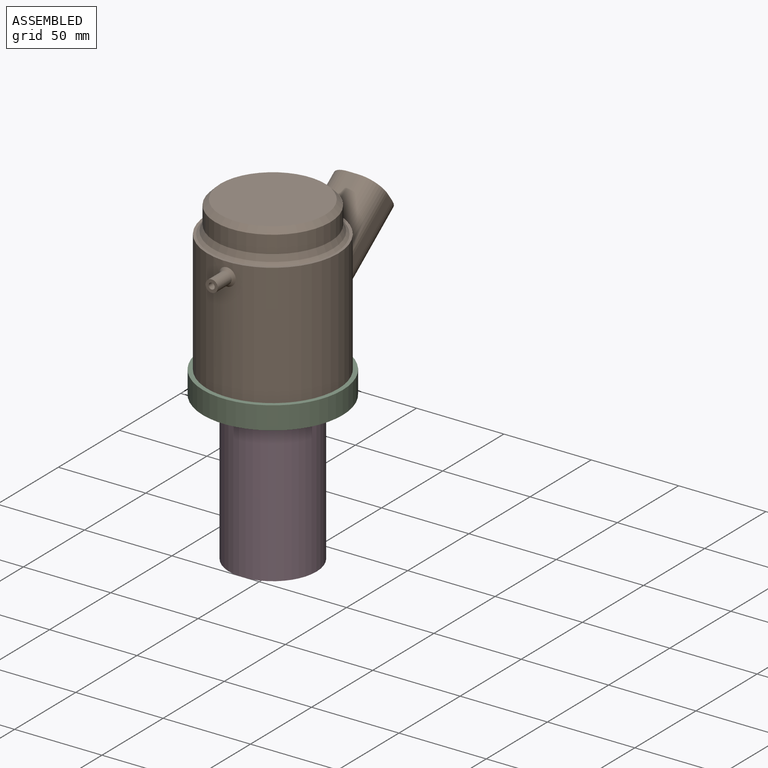
[diagram: assembled view]
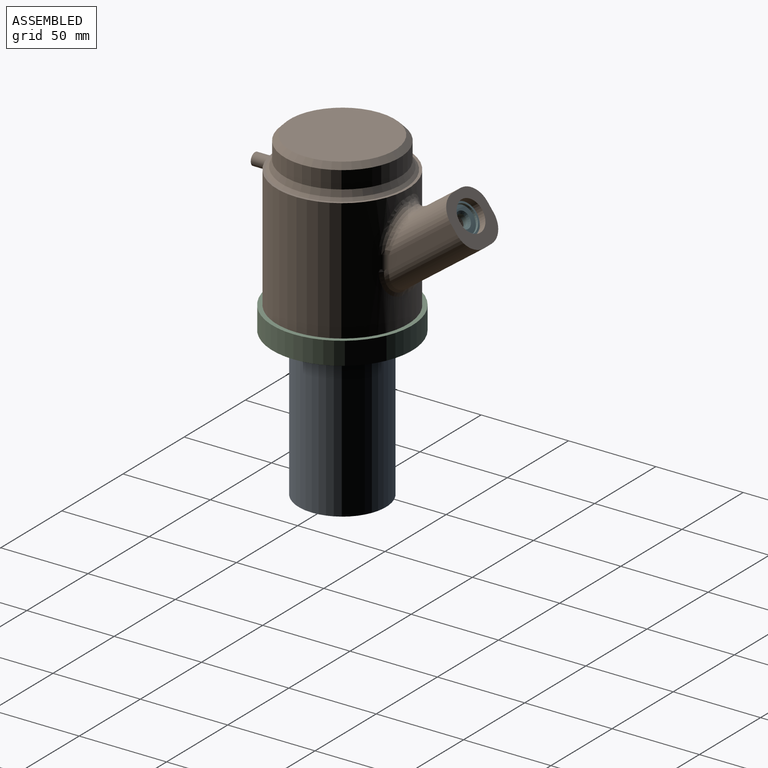
[diagram: assembled view, second angle]
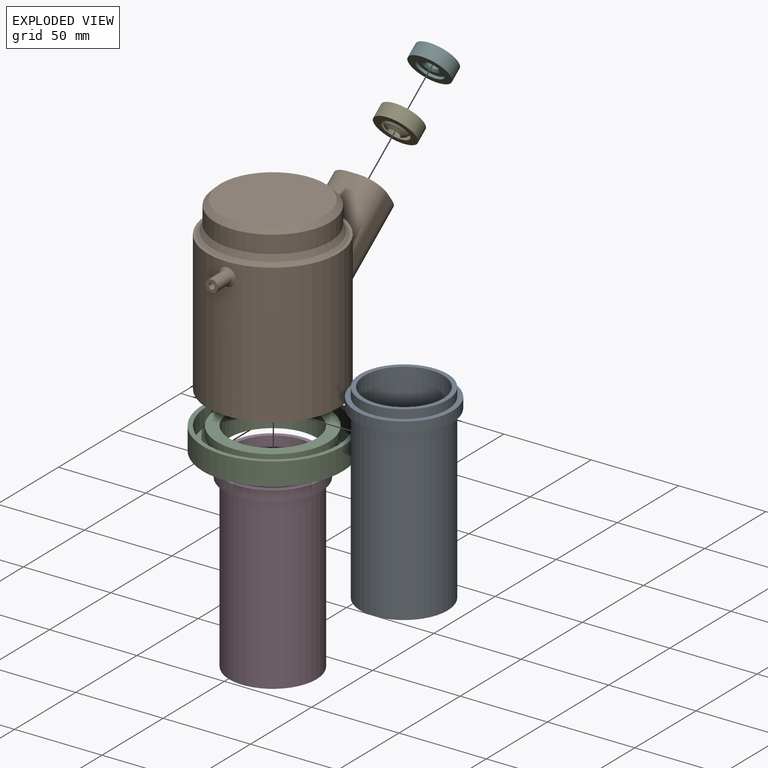
[diagram: exploded view]
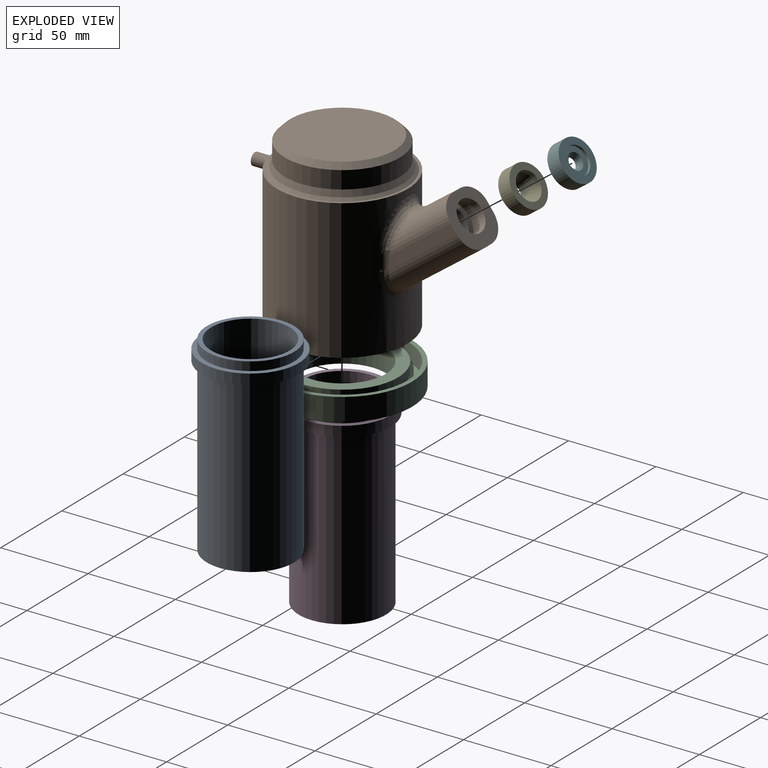
[diagram: exploded view, second angle]
ASSEMBLY  parts=6 mates=4
PART A: 9 faces, bbox 55.6x55.6x109 mm
  f0: cylinder r=25mm len=98mm, axis (0,0,1), area 15393.8mm2, adj f1,f8
  f1: plane 55.6x55.6mm, normal (0,0,-1), area 464.5mm2, adj f0,f2
  f2: cylinder r=27.8mm len=55.6mm, axis (0,0,1), area 1048mm2, adj f1,f3
  f3: plane 55.6x55.6mm, normal (0,0,1), area 464.5mm2, adj f2,f4
  f4: cylinder r=25mm len=50mm, axis (0,0,1), area 785.4mm2, adj f3,f5
  f5: plane 50x50mm, normal (0,0,1), area 373.1mm2, adj f4,f6
  f6: cylinder r=22.5mm len=106.5mm, axis (0,0,1), area 15056.1mm2, adj f5,f7
  f7: plane 45x45mm, normal (0,0,1), area 1590.4mm2, adj f6
  f8: plane 50x50mm, normal (0,0,-1), area 1963.5mm2, adj f0
PART B: 46 faces, bbox 75x133.3x98 mm
  f0: cylinder r=9mm len=28.4mm, axis (0,0.8,0.59), area 922mm2, adj f2,f43
  f1: cylinder r=9mm len=28.39mm, axis (0,0.8,0.59), area 1244.1mm2, adj f40,f44
  f2: cylinder r=27.5mm len=70mm, axis (0,0,1), area 11764.1mm2, adj f0,f10,f11,f37
  f3: cylinder r=37.5mm len=80mm, axis (0,0,1), area 17242.4mm2, adj f6,f7,f16,f28,f29,f30,f31,f32
  f4: cylinder r=33mm len=66mm, axis (0,0,-1), area 2073.5mm2, adj f15,f17
  f5: plane 60x60mm, normal (0,0,1), area 2827.4mm2, adj f15
  f6: plane 75x75mm, normal (0,0,-1), area 1495.4mm2, adj f3,f36
  f7: plane 75x75mm, normal (0,0,1), area 346.4mm2, adj f3,f14
  f8: cylinder r=3.5mm len=11mm, axis (0,1,0), area 241.9mm2, adj f9,f16
  f9: plane 7x7mm, normal (0,-1,0), area 28.9mm2, adj f8,f10
  f10: cylinder r=1.75mm len=22.5mm, axis (0,1,0), area 247.4mm2, adj f2,f9
  f11: plane 55x55mm, normal (0,0,-1), area 412.3mm2, adj f2,f12
  f12: cylinder r=25mm len=50mm, axis (0,0,-1), area 2356.2mm2, adj f11,f13
  f13: plane 50x50mm, normal (0,0,-1), area 1963.5mm2, adj f12
  f14: cone r=33mm half-angle=45deg, axis (0,0,-1), area 496.1mm2, adj f7,f17
  f15: cone r=30mm half-angle=45deg, axis (0,0,-1), area 839.7mm2, adj f4,f5
  f16: bspline ~10x9.62mm, area 54.2mm2, adj f3,f8
  f17: cone r=33mm half-angle=22.5deg, axis (0,0,-1), area 782.7mm2, adj f4,f14
  f18: plane 20.06x14.82mm, normal (0,-0.59,0.8), area 149.1mm2, adj f20,f25,f27,f31
  f19: plane 43.83x32.39mm, normal (0,0.59,-0.8), area 326.5mm2, adj f20,f24,f26,f32
  f20: plane 30x24.13mm, normal (0,0.8,0.59), area 521.9mm2, adj f18,f19,f21,f22,f23,f24,f25,f26
  f21: plane 38.63x33.36mm, normal (1,0,0), area 274.8mm2, adj f20,f26,f27,f35
  f22: plane 38.63x33.36mm, normal (-1,0,0), area 274.8mm2, adj f20,f24,f25,f28
  f23: cylinder r=9mm len=18mm, axis (0,0.8,0.59), area 226.2mm2, adj f20,f41
  f24: cylinder r=12mm len=50.96mm, axis (0,0.8,0.59), area 966.3mm2, adj f19,f20,f22,f30
  f25: cylinder r=12mm len=42.19mm, axis (0,-0.8,-0.59), area 645.9mm2, adj f18,f20,f22,f29
  f26: cylinder r=12mm len=50.96mm, axis (0,-0.8,-0.59), area 966.3mm2, adj f19,f20,f21,f34
  f27: cylinder r=12mm len=42.19mm, axis (0,0.8,0.59), area 645.9mm2, adj f18,f20,f21,f33
  f28: cylinder r=5mm len=7.46mm, axis (0,0,1), area 40.3mm2, adj f3,f22,f29,f30
  f29: bspline ~26.94x17.42mm, area 223.8mm2, adj f3,f25,f28,f31
  f30: bspline ~20.44x16.66mm, area 107.4mm2, adj f3,f24,f28,f32
  f31: bspline ~8.07x6mm, area 59.3mm2, adj f3,f18,f29,f33
  f32: bspline ~6x4.1mm, area 26.3mm2, adj f3,f19,f30,f34
  f33: bspline ~26.94x17.42mm, area 223.8mm2, adj f3,f27,f31,f35
  f34: bspline ~20.44x16.66mm, area 107.4mm2, adj f3,f26,f32,f35
  f35: cylinder r=5mm len=7.46mm, axis (0,0,1), area 40.3mm2, adj f3,f21,f33,f34
  f36: cylinder r=30.5mm len=61mm, axis (0,0,-1), area 958.2mm2, adj f6,f38
  f37: plane 64x64mm, normal (0,0,-1), area 841.2mm2, adj f2,f39
  f38: plane 64x64mm, normal (0,0,1), area 294.5mm2, adj f36,f39
  f39: cylinder r=32mm len=64mm, axis (0,0,-1), area 1005.3mm2, adj f37,f38
  f40: plane 24x19.3mm, normal (0,0.8,0.59), area 197.9mm2, adj f1,f42
  f41: plane 24x19.3mm, normal (0,-0.8,-0.59), area 197.9mm2, adj f23,f42
  f42: cylinder r=12mm len=24.06mm, axis (0,0.8,0.59), area 603.2mm2, adj f40,f41
  f43: plane 24x19.3mm, normal (0,0.8,0.59), area 197.9mm2, adj f0,f45
  f44: plane 24x19.3mm, normal (0,-0.8,-0.59), area 197.9mm2, adj f1,f45
  f45: cylinder r=12mm len=24.06mm, axis (0,0.8,0.59), area 603.2mm2, adj f43,f44
PART C: 10 faces, bbox 80x80x13 mm
  f0: cylinder r=25mm len=50mm, axis (0,0,1), area 2042mm2, adj f1,f9
  f1: plane 80x80mm, normal (0,0,-1), area 3063.1mm2, adj f0,f2
  f2: cylinder r=40mm len=80mm, axis (0,0,1), area 3267.3mm2, adj f1,f3
  f3: plane 80x80mm, normal (0,0,1), area 608.7mm2, adj f2,f4
  f4: cylinder r=37.5mm len=75mm, axis (0,0,1), area 2356.2mm2, adj f3,f5
  f5: plane 75x75mm, normal (0,0,1), area 1495.4mm2, adj f4,f6
  f6: cylinder r=30.5mm len=61mm, axis (0,0,1), area 958.2mm2, adj f5,f7
  f7: plane 63.8x63.8mm, normal (0,0,-1), area 274.4mm2, adj f6,f8
  f8: cylinder r=31.9mm len=63.8mm, axis (0,0,1), area 1002.2mm2, adj f7,f9
  f9: plane 63.8x63.8mm, normal (0,0,1), area 1233.4mm2, adj f0,f8
PART D: same geometry as A
PART E: 9 faces, bbox 24x24x9.7 mm
  f0: cone r=3.5mm half-angle=41deg, axis (0,0,1), area 58.6mm2, adj f1,f8
  f1: cone r=6.03mm half-angle=56.6deg, axis (0,0,1), area 90.6mm2, adj f0,f2
  f2: cone r=8mm half-angle=30.8deg, axis (0,0,1), area 169.5mm2, adj f1,f3
  f3: cylinder r=8mm len=16mm, axis (0,0,1), area 166mm2, adj f2,f4
  f4: plane 24x24mm, normal (0,0,-1), area 251.3mm2, adj f3,f5
  f5: cylinder r=12mm len=24mm, axis (0,0,1), area 603.2mm2, adj f4,f6
  f6: plane 24x24mm, normal (0,0,1), area 251.3mm2, adj f5,f7
  f7: cylinder r=8mm len=16mm, axis (0,0,1), area 145.2mm2, adj f6,f8
  f8: cone r=4.95mm half-angle=30.8deg, axis (0,0,1), area 242.1mm2, adj f0,f7
PART F: 10 faces, bbox 23.8x23.8x8 mm
  f0: cone r=3.5mm half-angle=50.2deg, axis (0,0,1), area 43.3mm2, adj f1,f9
  f1: cylinder r=3.5mm len=7mm, axis (0,0,1), area 63mm2, adj f0,f2
  f2: cone r=4.78mm half-angle=50.2deg, axis (0,0,-1), area 43.3mm2, adj f1,f3
  f3: plane 15.76x15.76mm, normal (0,0,-1), area 123.3mm2, adj f2,f4
  f4: cylinder r=7.88mm len=15.76mm, axis (0,0,1), area 74.3mm2, adj f3,f5
  f5: plane 23.76x23.76mm, normal (0,0,-1), area 248.3mm2, adj f4,f6
  f6: cylinder r=11.88mm len=23.76mm, axis (0,0,1), area 597.2mm2, adj f5,f7
  f7: plane 23.76x23.76mm, normal (0,0,1), area 248.3mm2, adj f6,f8
  f8: cylinder r=7.88mm len=15.76mm, axis (0,0,1), area 74.3mm2, adj f7,f9
  f9: plane 15.76x15.76mm, normal (0,0,1), area 123.3mm2, adj f0,f8
PLACE A t=(13.67,120.2,-1.5)mm
PLACE B t=(13.67,120.2,112.56)mm
PLACE C t=(13.67,120.2,29.56)mm
PLACE D t=(13.67,120.2,-1.5)mm
PLACE E rot(axis=(-1,0,0),53.5deg) t=(13.67,158.71,82.24)mm
PLACE F rot(axis=(-1,0,0),53.5deg) t=(13.67,186.25,102.58)mm
MATE fastened E.f0 <-> B.f45  axis (0,0.8,0.59) through (13.67,160.05,83.23)mm
MATE fastened F.f0 <-> B.f45  axis (0,-0.8,-0.59) through (13.67,184.18,101.06)mm
MATE fastened C.f0 <-> B.f2  axis (0,0,1) through (13.67,120.2,42.56)mm
MATE fastened C.f0 <-> D.f0  axis (0,0,1) through (13.67,120.2,42.56)mm
